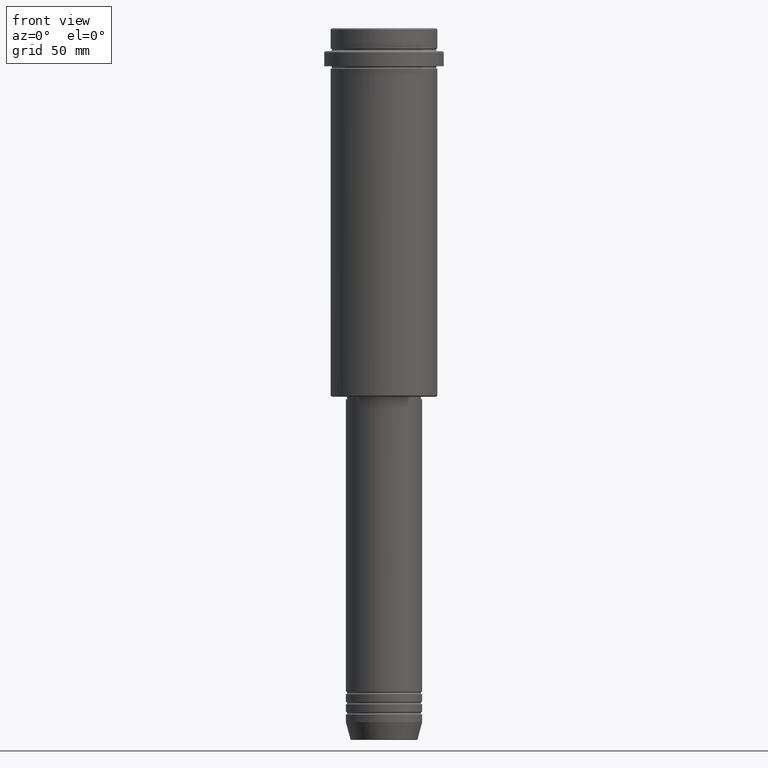
[diagram: clean part render]
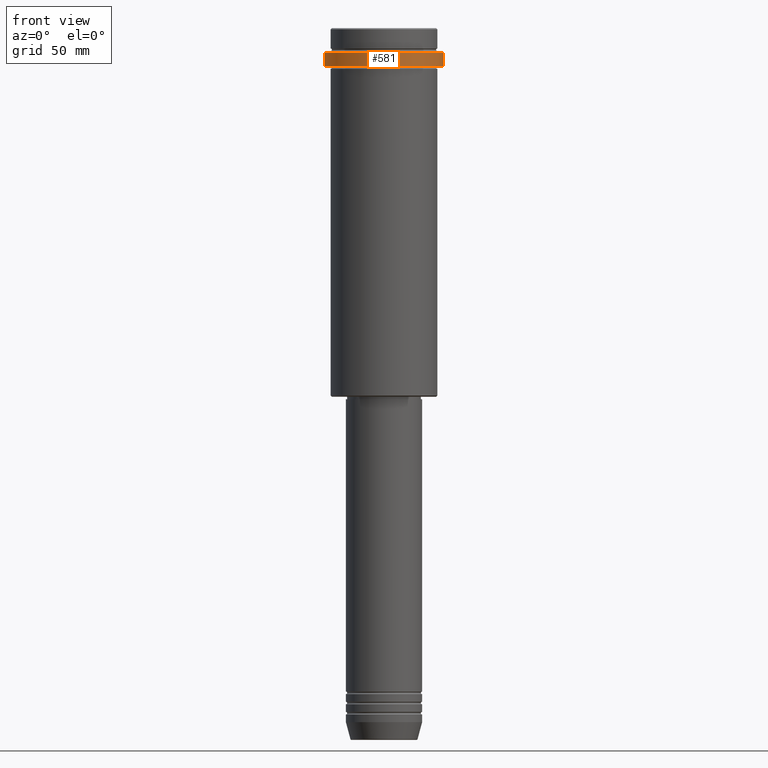
[diagram: same view with one face highlighted and labeled with its STEP entity id]
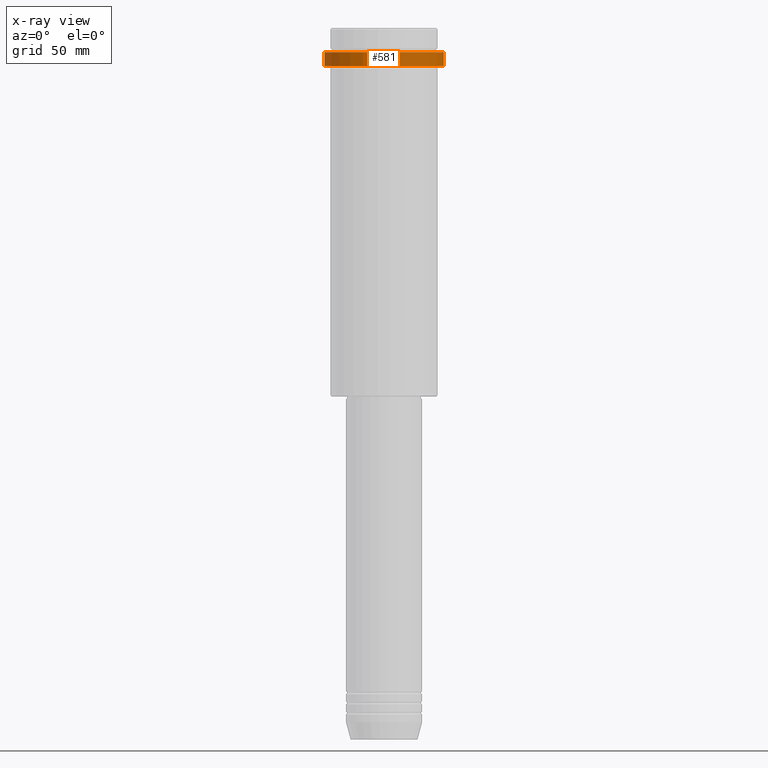
[diagram: x-ray of the same camera — body ghosted, the highlighted face saturated]
A machine part, front view. The second image highlights one B-rep face of the part: STEP entity #581.
The next image is the same camera in x-ray: the body ghosted, the highlighted face saturated — about 0% of this face is hidden behind the body in this view.
In plain terms, the highlighted cylindrical surface (partial cylindrical patch) has radius 23.5 mm, axis along (-0, -0, 1).
Its self-contained STEP definition (entity closure, byte-faithful):
#111 = CARTESIAN_POINT ( 'NONE',  ( 23.50000000000000000, 0.000000000000000000, 0.000000000000000000 ) ) ;
#207 = ORIENTED_EDGE ( 'NONE', *, *, #1138, .T. ) ;
#208 = DIRECTION ( 'NONE',  ( 0.000000000000000000, 0.000000000000000000, -1.000000000000000000 ) ) ;
#216 = CARTESIAN_POINT ( 'NONE',  ( 23.50000000000000355, 0.000000000000000000, -15.00000000000000178 ) ) ;
#227 = DIRECTION ( 'NONE',  ( 1.000000000000000000, 0.000000000000000000, 0.000000000000000000 ) ) ;
#323 = LINE ( 'NONE', #111, #671 ) ;
#329 = CARTESIAN_POINT ( 'NONE',  ( 23.50000000000000000, 0.000000000000000000, -9.499999999999973355 ) ) ;
#361 = ORIENTED_EDGE ( 'NONE', *, *, #635, .T. ) ;
#414 = VERTEX_POINT ( 'NONE', #844 ) ;
#416 = ORIENTED_EDGE ( 'NONE', *, *, #436, .T. ) ;
#436 = EDGE_CURVE ( 'NONE', #989, #483, #1376, .T. ) ;
#439 = CARTESIAN_POINT ( 'NONE',  ( 0.000000000000000000, 0.000000000000000000, -15.00000000000000178 ) ) ;
#459 = DIRECTION ( 'NONE',  ( -0.000000000000000000, -0.000000000000000000, 1.000000000000000000 ) ) ;
#483 = VERTEX_POINT ( 'NONE', #1395 ) ;
#500 = EDGE_LOOP ( 'NONE', ( #888, #207, #361, #416 ) ) ;
#564 = EDGE_CURVE ( 'NONE', #414, #483, #1270, .T. ) ;
#568 = FACE_OUTER_BOUND ( 'NONE', #500, .T. ) ;
#581 = ADVANCED_FACE ( 'NONE', ( #568 ), #1107, .T. ) ;
#635 = EDGE_CURVE ( 'NONE', #645, #989, #323, .T. ) ;
#640 = DIRECTION ( 'NONE',  ( 1.000000000000000000, 0.000000000000000000, 0.000000000000000000 ) ) ;
#645 = VERTEX_POINT ( 'NONE', #216 ) ;
#671 = VECTOR ( 'NONE', #1308, 1000.000000000000000 ) ;
#684 = DIRECTION ( 'NONE',  ( -0.000000000000000000, -0.000000000000000000, 1.000000000000000000 ) ) ;
#806 = VECTOR ( 'NONE', #1321, 1000.000000000000000 ) ;
#836 = CIRCLE ( 'NONE', #1269, 23.50000000000000355 ) ;
#844 = CARTESIAN_POINT ( 'NONE',  ( -23.50000000000000711, 2.877919977996281109E-15, -15.00000000000000178 ) ) ;
#888 = ORIENTED_EDGE ( 'NONE', *, *, #564, .F. ) ;
#989 = VERTEX_POINT ( 'NONE', #329 ) ;
#1100 = AXIS2_PLACEMENT_3D ( 'NONE', #1282, #208, #640 ) ;
#1107 = CYLINDRICAL_SURFACE ( 'NONE', #1287, 23.50000000000000000 ) ;
#1138 = EDGE_CURVE ( 'NONE', #414, #645, #836, .T. ) ;
#1213 = CARTESIAN_POINT ( 'NONE',  ( 0.000000000000000000, 0.000000000000000000, 0.000000000000000000 ) ) ;
#1269 = AXIS2_PLACEMENT_3D ( 'NONE', #439, #684, #1374 ) ;
#1270 = LINE ( 'NONE', #1382, #806 ) ;
#1282 = CARTESIAN_POINT ( 'NONE',  ( 0.000000000000000000, 0.000000000000000000, -9.499999999999973355 ) ) ;
#1287 = AXIS2_PLACEMENT_3D ( 'NONE', #1213, #459, #227 ) ;
#1308 = DIRECTION ( 'NONE',  ( -0.000000000000000000, -0.000000000000000000, 1.000000000000000000 ) ) ;
#1321 = DIRECTION ( 'NONE',  ( -0.000000000000000000, -0.000000000000000000, 1.000000000000000000 ) ) ;
#1374 = DIRECTION ( 'NONE',  ( 1.000000000000000000, 0.000000000000000000, 0.000000000000000000 ) ) ;
#1376 = CIRCLE ( 'NONE', #1100, 23.50000000000000000 ) ;
#1382 = CARTESIAN_POINT ( 'NONE',  ( -23.50000000000000000, 2.877919977996280320E-15, 0.000000000000000000 ) ) ;
#1395 = CARTESIAN_POINT ( 'NONE',  ( -23.50000000000000000, 2.877919977996280320E-15, -9.499999999999973355 ) ) ;